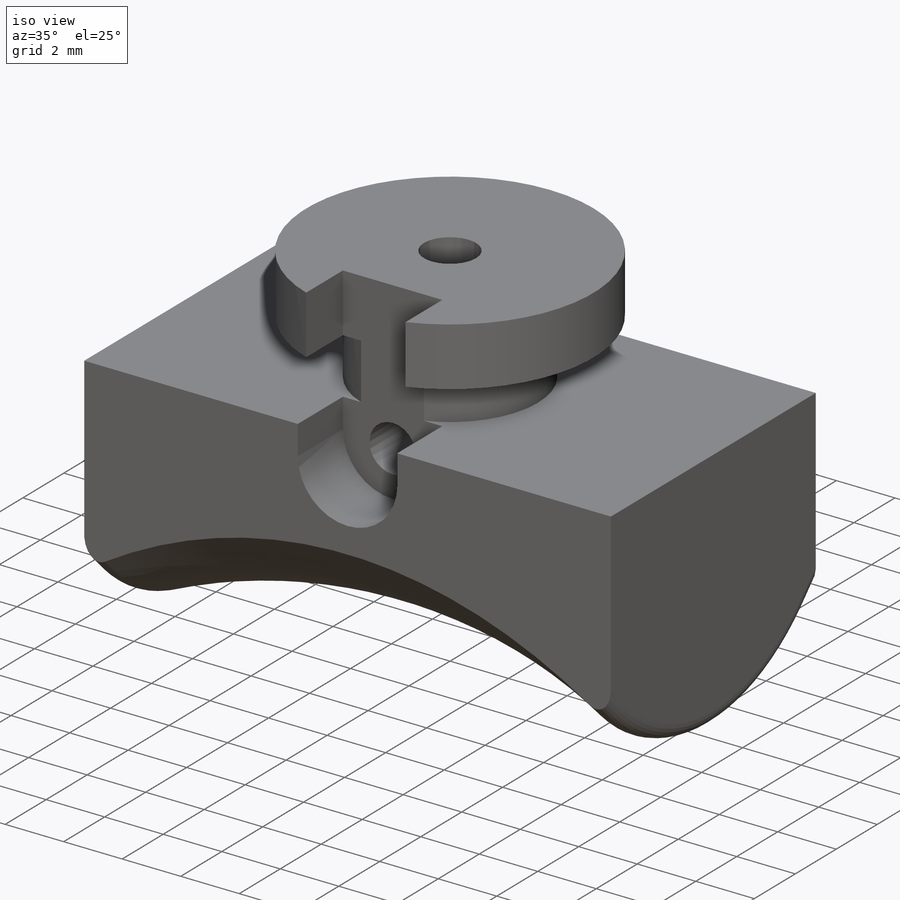
[diagram: iso view]
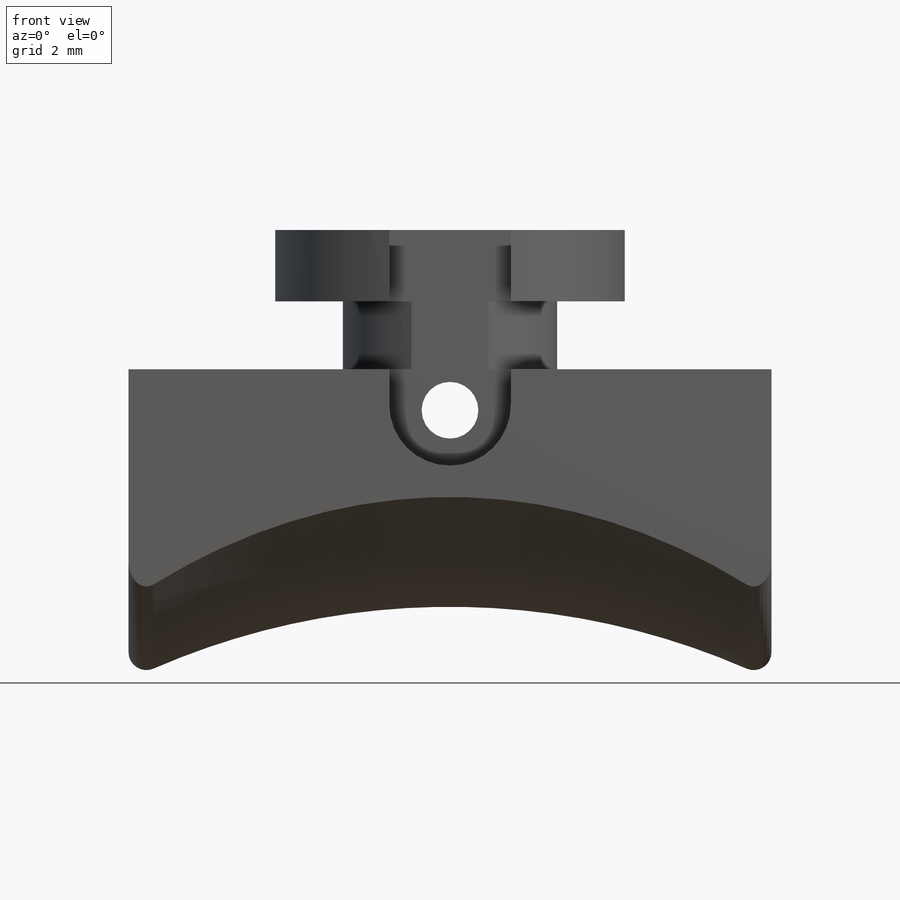
[diagram: front view]
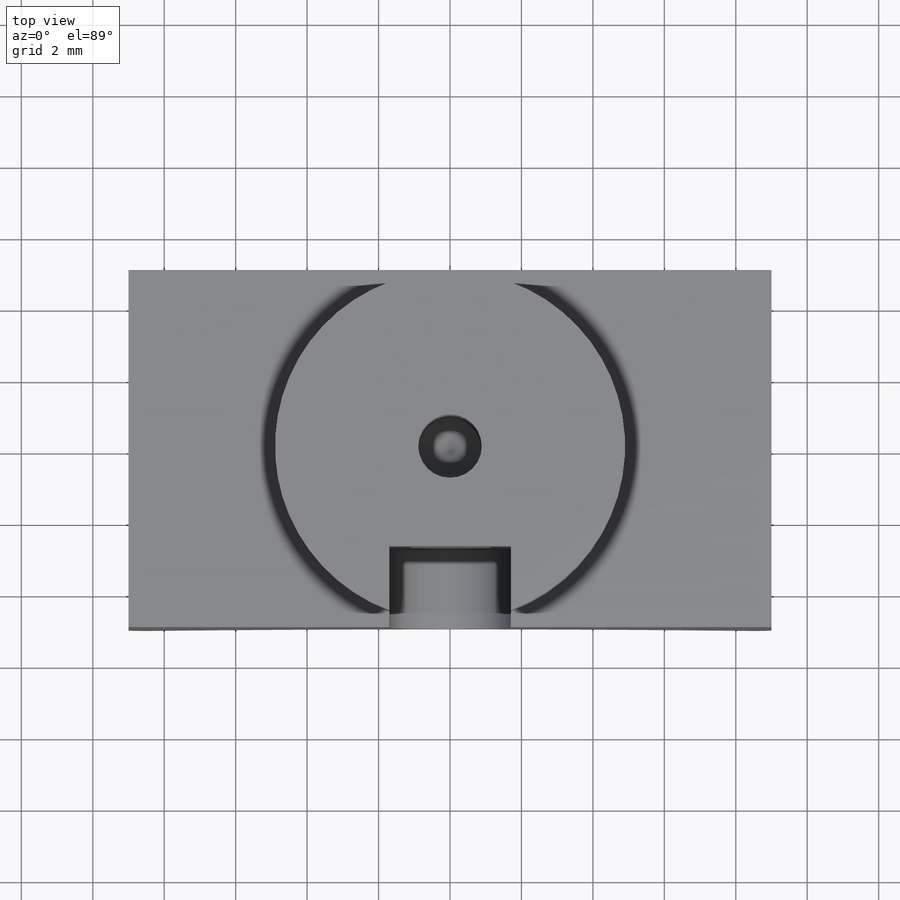
[diagram: top view]
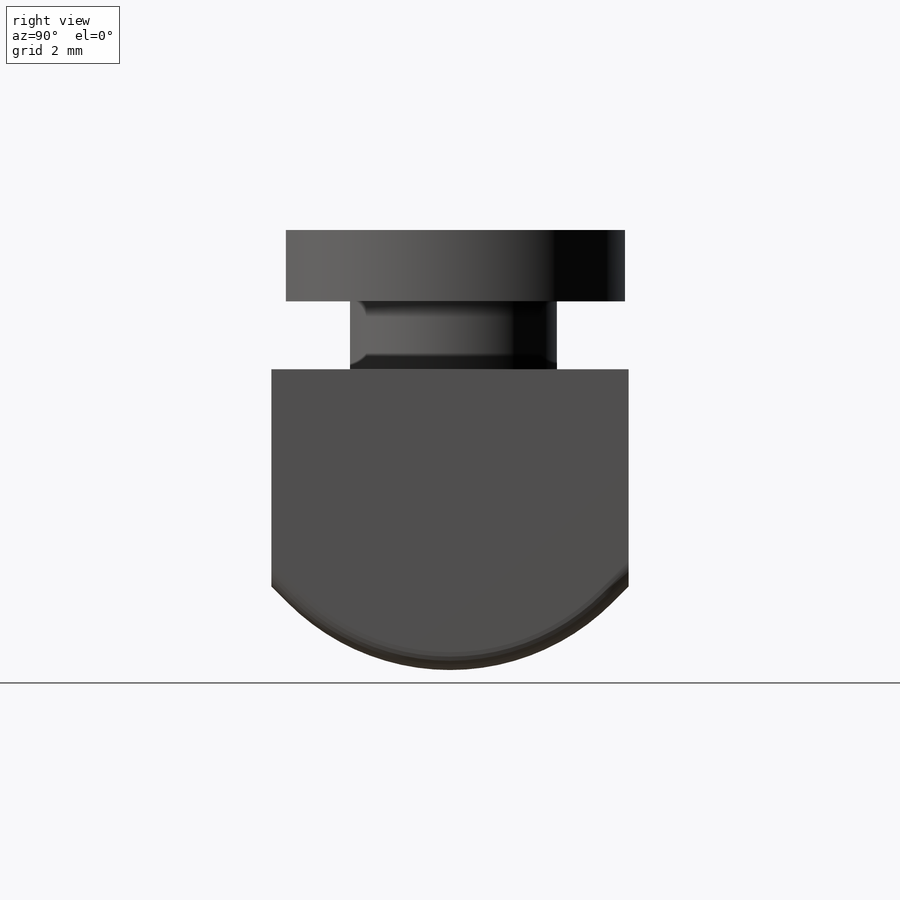
[diagram: right view]
SOLIDWORKS PART (.sldprt)
format: sldprt  version: not decoded by parser v0  size: 429,568 bytes
history: native  units: mm
features: sketch x14, cut_extrude x5, extrude x2, fillet x2, hole x2, material x1, sweep x1, mirror x1, revolve x1, thread x1 (+11 scaffold rows collapsed)
feature tree (41):
  scaffold x11  (default folders/planes/origin — collapsed)
  material  "6061-T6 (SS)"
  sketch  "Sketch1"  dims[c1.D1=8.5mm c1.D2=20.0mm c1.D3=~3.204103mm c2.D3=~19.658548mm c3.D3=45.0deg c3.D4=20.0mm c3.D2=30.0mm]
  extrude  "Boss-Extrude1"  Depth=18mm
  sketch  "Sketch2"
  sketch  "Sketch3"  dims[D1=41.54mm D2=0.4mm]
  sweep  "Sweep1"
  sketch  "Sketch4"
  cut_extrude  "Cut-Extrude3"  Depth=6mm
  fillet  "Fillet1"  Radius=0.5mm
  mirror  "Mirror1"
  sketch  "Sketch5"  dims[c1.D1=14.0mm c1.D2=~24.926212mm c2.D2=11.0deg c2.D3=28.0mm]
  cut_extrude  "Cut-Extrude4"  Depth=40mm
  sketch  "Sketch8"  dims[c1.D1=2.0mm c1.D2=~8.754608mm c2.D2=6.0deg]
  cut_extrude  "Cut-Extrude5"  [1 undecoded]
  sketch  "Sketch10"  dims[D1=3.0mm D2=10.0mm]
  extrude  "Boss-Extrude2"  [1 undecoded]
  fillet  "Fillet2"  Radius=3mm
  sketch  "Sketch11"  dims[D1=10.0mm D2=2.0mm D3=20.0mm]
  cut_extrude  "Cut-Extrude6"  [1 undecoded]
  sketch  "Sketch13"  dims[D1=6.0mm D2=1.9mm D3=2.0mm D4=1.9mm]
  revolve  "Revolve1"  Angle=360deg
  hole  "#2-56 Tapped Hole1"  Diameter=1.778mm Depth=5.73mm
  sketch  "Sketch15"
  sketch  "Sketch14"  dims[hole-wizard template sketch: 47 standard entries collapsed; hole parameters kept: c15.Tap Drill Depth=5.73mm c15.D3=~14.816244mm c15.Drill Angle=118.0deg]
  thread  "Hole Thread1"  Diameter=4.37mm  [1 undecoded]
  sketch  "Sketch16"  dims[c1.D1=2.5mm c1.D2=3.4mm c2.D1=3.4mm c2.D2=1.0mm c2.D3=~6.961251mm]
  cut_extrude  "Cut-Extrude7"  Depth=2.2mm
  hole  "1/16 (0.0625) Diameter Hole1"  Diameter=1.5875mm Depth=7.8mm
  sketch  "Sketch18"
  sketch  "Sketch17"  dims[hole-wizard template sketch: 60 standard entries collapsed; hole parameters kept: c18.Thru Hole Depth=7.8mm]
decode coverage: 20 of 29 modeling features carry decoded parameters
note: ~ marks probable driven/reference dimensions
note: 4 parameter values undecoded
summary: no parameter record found for 3 features
note: suppression state not decoded; provenance and decode notes live in map.json
